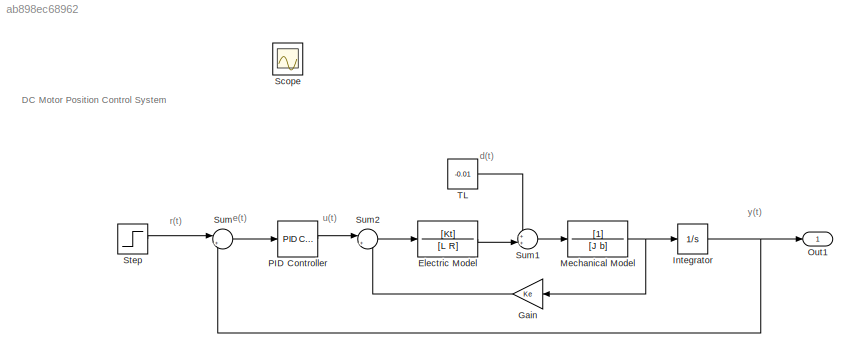
MODEL slx_ab898ec68962
KIND model
CONFIG AbsTol = auto
CONFIG EnableMultiTasking = off
CONFIG FixedStep = 0.0001
CONFIG MaxStep = auto
CONFIG MinStep = auto
CONFIG RelTol = 1e-3
CONFIG SampleTimeConstraint = Unconstrained
CONFIG SolverName = ode4
CONFIG StartTime = 0.0
CONFIG StopTime = 0.2
BLOCK [TransferFcn] Electric Model
  Denominator = [L R]
  Numerator = [Kt]
BLOCK [Gain] Gain
  Gain = Ke
  NameLocation = top
BLOCK [Integrator] Integrator
  Ports = [1, 1]
BLOCK [TransferFcn] Mechanical Model
  Denominator = [J b]
BLOCK [Outport] Out1
BLOCK [Reference] PID Controller  REF=slpidlib/PID Controller
  Ports = [1, 1]
  SourceBlock = slpidlib/PID Controller
  SourceProductBaseCode = SL
  SourceType = PID 1dof
BLOCK [Scope] Scope
  Floating = off
  IOType = viewer
  NumInputPorts = 1
  Ports = []
  ScopeSpecificationString = Simulink.scopes.TimeScopeBlockCfg('CurrentConfiguration', extmgr.ConfigurationSet(extmgr.Configuration('Core','General UI',true,'ShowMainToolbar',false),extmgr.Configuration('Core','Source UI',true),extmgr.Configuration('Sources','WiredSimulink',true),extmgr.Configuration('Visuals','Time Domain',true,'SerializedDisplays',{struct('MinYLimReal','-0.125','MaxYLimReal','1.125','YLabelReal','','MinYLim...<+1404ch>
BLOCK [Step] Step
  SampleTime = 0
  Time = 0
BLOCK [Sum] Sum
  Inputs = |+-
  Ports = [2, 1]
BLOCK [Sum] Sum1
  Inputs = ++|
  Ports = [2, 1]
BLOCK [Sum] Sum2
  Inputs = |+-
  Ports = [2, 1]
BLOCK [Constant] TL
  Value = -0.01
ANNOTATION (root): DC Motor Position Control System
ANNOTATION (root): d(t)
ANNOTATION (root): e(t)
ANNOTATION (root): r(t)
ANNOTATION (root): u(t)
ANNOTATION (root): y(t)
LINE Electric Model:1 -> Sum1:2
LINE Gain:1 -> Sum2:2
NET Integrator:1 -> Out1:1, Sum:2
NET Mechanical Model:1 -> Gain:1, Integrator:1
LINE PID Controller:1 -> Sum2:1
LINE Step:1 -> Sum:1
LINE Sum1:1 -> Mechanical Model:1
LINE Sum2:1 -> Electric Model:1
LINE Sum:1 -> PID Controller:1
LINE TL:1 -> Sum1:1
note: NET lines group one-source signal fan-out (src -> all destinations, sorted); 1:1 wires keep LINE
